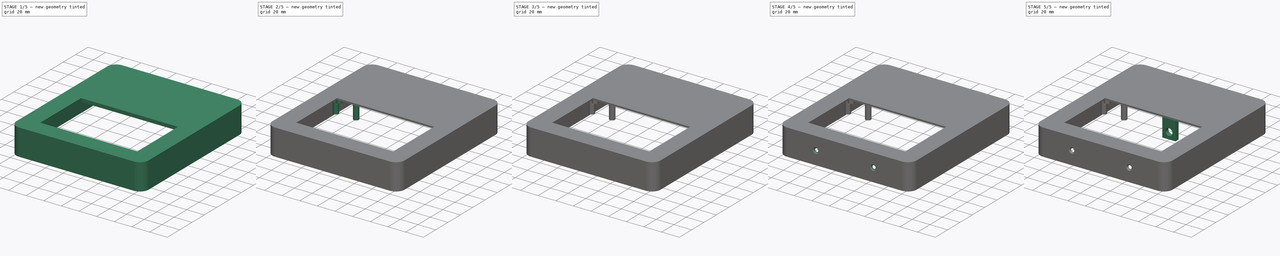
[diagram: build sequence overview — one tinted view per stage of 5, left to right]
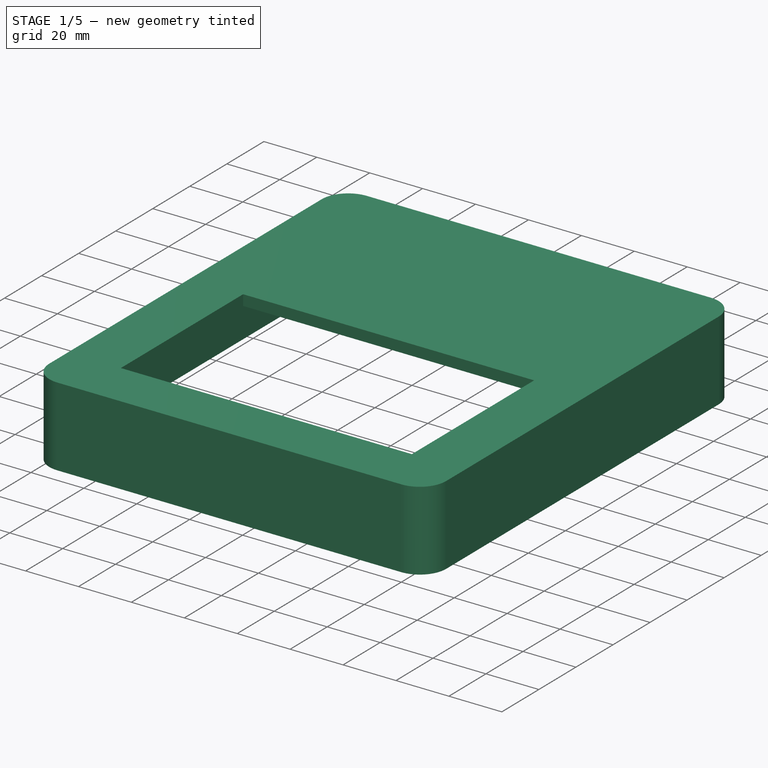
[diagram: stage 1 of 5 — iso view after this stage's code; geometry added in this stage tinted green]
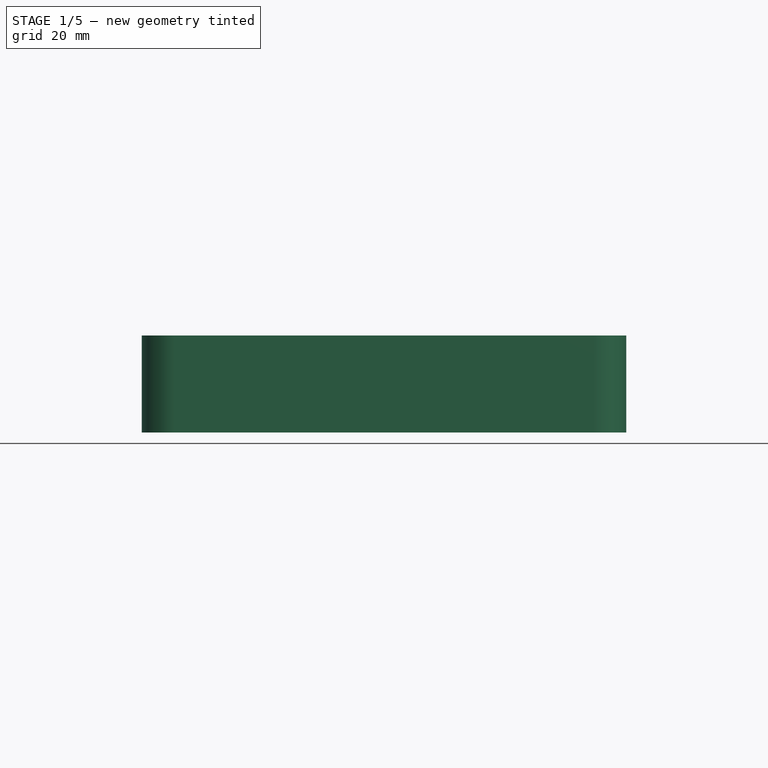
[diagram: stage 1 of 5 — front view after this stage's code; geometry added in this stage tinted green]
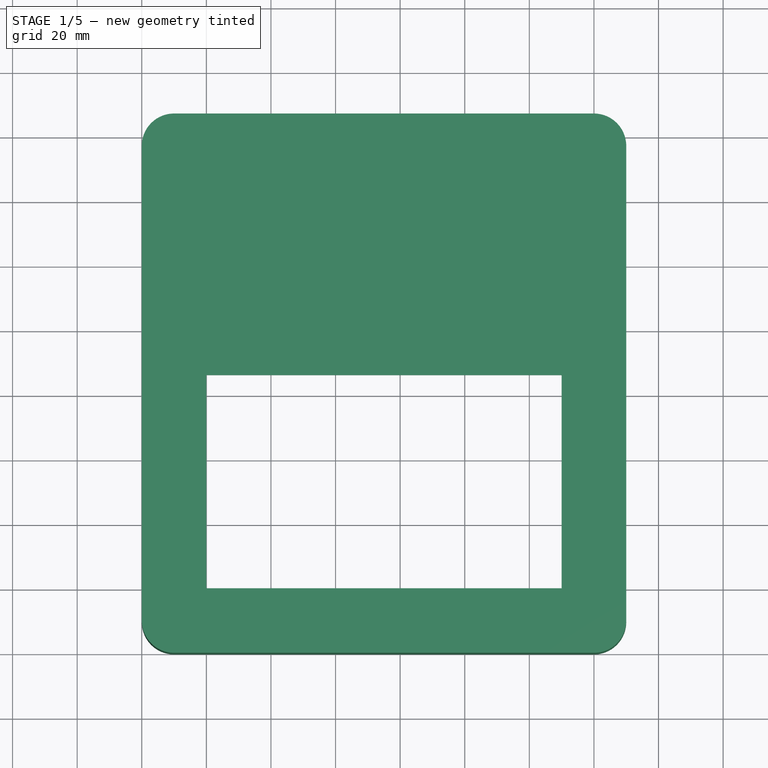
[diagram: stage 1 of 5 — top view after this stage's code; geometry added in this stage tinted green]
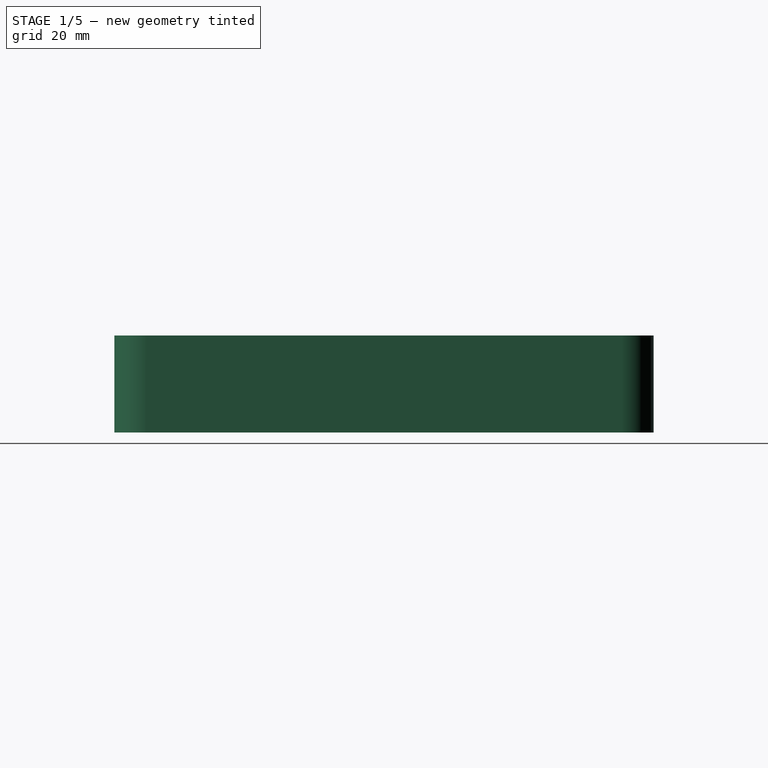
[diagram: stage 1 of 5 — right view after this stage's code; geometry added in this stage tinted green]
FCSTD DOCUMENT  (FreeCAD 0.18R)
Label: neu_top
License: All rights reserved
LicenseURL: http://en.wikipedia.org/wiki/All_rights_reserved
objects: Sketcher::SketchObject×17, PartDesign::Pocket×8, PartDesign::Pad×7, PartDesign::Hole×2, PartDesign::Body×1
note: 52 computed .brp shape members not serialized (recipe doc carries the construction recipe); baked Part::Feature solids carry a one-line shape summary decoded from their .brp

FEATURE [Sketcher::SketchObject] Sketch001
  MapMode = 5
  Support = -> [XY_Plane]
  sketch-geometry (8):
    g0: LineSegment StartX=10 StartY=167 StartZ=0 EndX=140 EndY=167 EndZ=0
    g1: LineSegment StartX=150 StartY=157 StartZ=0 EndX=150 EndY=10 EndZ=0
    g2: LineSegment StartX=140 StartY=0 StartZ=0 EndX=10 EndY=0 EndZ=0
    g3: LineSegment StartX=0 StartY=10 StartZ=0 EndX=0 EndY=157 EndZ=0
    g4: ArcOfCircle CenterX=10 CenterY=157 CenterZ=0 NormalX=0 NormalY=0 NormalZ=1 AngleXU=0 Radius=10 StartAngle=1.5708 EndAngle=3.14159
    g5: ArcOfCircle CenterX=140 CenterY=157 CenterZ=0 NormalX=0 NormalY=0 NormalZ=1 AngleXU=0 Radius=10 StartAngle=-9e-16 EndAngle=1.5708
    g6: ArcOfCircle CenterX=140 CenterY=10 CenterZ=0 NormalX=0 NormalY=0 NormalZ=1 AngleXU=0 Radius=10 StartAngle=4.71239 EndAngle=6.28319
    g7: ArcOfCircle CenterX=10 CenterY=10 CenterZ=0 NormalX=0 NormalY=0 NormalZ=1 AngleXU=0 Radius=10 StartAngle=3.14159 EndAngle=4.71239
  constraints (20):
    c: Horizontal(g0)
    c: Horizontal(g2)
    c: Vertical(g1)
    c: Vertical(g3)
    c: Tangent(g0,g4) = 1.5708
    c: Tangent(g3,g4) = 1.5708
    c: Tangent(g0,g5) = 1.5708
    c: Tangent(g1,g5) = 1.5708
    c: Tangent(g1,g6) = 1.5708
    c: Tangent(g2,g6) = 1.5708
    c: Tangent(g2,g7) = 1.5708
    c: Tangent(g3,g7) = 1.5708
    c: Radius(g6) = 10
    c: Radius(g7) = 10
    c: Radius(g4) = 10
    c: Radius(g5) = 10
    c: Distance(g3,g1) = 150
    c: Distance(g0,g2) = 167
    c: DistanceY(g-1,g2) = 0
    c: DistanceX(g-2,g3) = 0
FEATURE [PartDesign::Pad] Pad
  Length = 30
  Length2 = 100
  Profile = -> Sketch001
  Type = 0
FEATURE [Sketcher::SketchObject] Sketch
  ExternalGeometry = -> [Pad]
  MapMode = 5
  Placement = pos=(0,0,0) rot=(1,0,0;3.14159rad)
  Support = -> [Pad]
  sketch-geometry (8):
    g0: LineSegment StartX=9.99999 StartY=-2 StartZ=0 EndX=140 EndY=-2 EndZ=0
    g1: LineSegment StartX=148 StartY=-10 StartZ=0 EndX=148 EndY=-157 EndZ=0
    g2: LineSegment StartX=140 StartY=-165 StartZ=0 EndX=10 EndY=-165 EndZ=0
    g3: LineSegment StartX=2 StartY=-157 StartZ=0 EndX=2 EndY=-9.99999 EndZ=0
    g4: ArcOfCircle CenterX=10 CenterY=-157 CenterZ=0 NormalX=0 NormalY=0 NormalZ=1 AngleXU=0 Radius=8.00001 StartAngle=3.14159 EndAngle=4.71239
    g5: ArcOfCircle CenterX=140 CenterY=-157 CenterZ=0 NormalX=0 NormalY=0 NormalZ=1 AngleXU=0 Radius=7.99999 StartAngle=4.71239 EndAngle=6.28319
    g6: ArcOfCircle CenterX=140 CenterY=-10 CenterZ=0 NormalX=0 NormalY=0 NormalZ=1 AngleXU=0 Radius=8.00001 StartAngle=0 EndAngle=1.5708
    g7: ArcOfCircle CenterX=9.99999 CenterY=-9.99999 CenterZ=0 NormalX=0 NormalY=0 NormalZ=1 AngleXU=0 Radius=7.99999 StartAngle=1.5708 EndAngle=3.14159
  constraints (20):
    c: Horizontal(g0)
    c: Horizontal(g2)
    c: Vertical(g1)
    c: Vertical(g3)
    c: Tangent(g3,g4) = 1.5708
    c: Tangent(g2,g4) = 1.5708
    c: Tangent(g1,g5) = 1.5708
    c: Tangent(g2,g5) = 1.5708
    c: Tangent(g0,g6) = 1.5708
    c: Tangent(g1,g6) = 1.5708
    c: Tangent(g0,g7) = 1.5708
    c: Tangent(g3,g7) = 1.5708
    c: Distance(g0,g-8) = 2
    c: Distance(g3,g-8) = 2
    c: Distance(g0,g-4) = 2
    c: Distance(g1,g-4) = 2
    c: Distance(g1,g-5) = 2
    c: Distance(g2,g-6) = 2
    c: Distance(g-7,g2) = 2
    c: Distance(g3,g-2) = 2
FEATURE [PartDesign::Pocket] Pocket
  BaseFeature = -> Pad
  Length = 26
  Length2 = 100
  Profile = -> Sketch
  Type = 0
FEATURE [Sketcher::SketchObject] Sketch002
  MapMode = 5
  Placement = pos=(0,0,26) rot=(1,0,0;3.14159rad)
  Support = -> [Pocket]
  sketch-geometry (4):
    g0: LineSegment StartX=20 StartY=-20 StartZ=0 EndX=130 EndY=-20 EndZ=0
    g1: LineSegment StartX=130 StartY=-20 StartZ=0 EndX=130 EndY=-86 EndZ=0
    g2: LineSegment StartX=130 StartY=-86 StartZ=0 EndX=20 EndY=-86 EndZ=0
    g3: LineSegment StartX=20 StartY=-86 StartZ=0 EndX=20 EndY=-20 EndZ=0
  constraints (12):
    c: Coincident(g0,g1)
    c: Coincident(g1,g2)
    c: Coincident(g2,g3)
    c: Coincident(g3,g0)
    c: Horizontal(g0)
    c: Horizontal(g2)
    c: Vertical(g1)
    c: Vertical(g3)
    c: Distance(g0) = 110
    c: Distance(g1) = 66
    c: Distance(g2,g-2) = 20
    c: Distance(g0,g-1) = 20
FEATURE [PartDesign::Pocket] Pocket001
  BaseFeature = -> Pocket
  Length = 5
  Length2 = 100
  Profile = -> Sketch002
  Type = 0
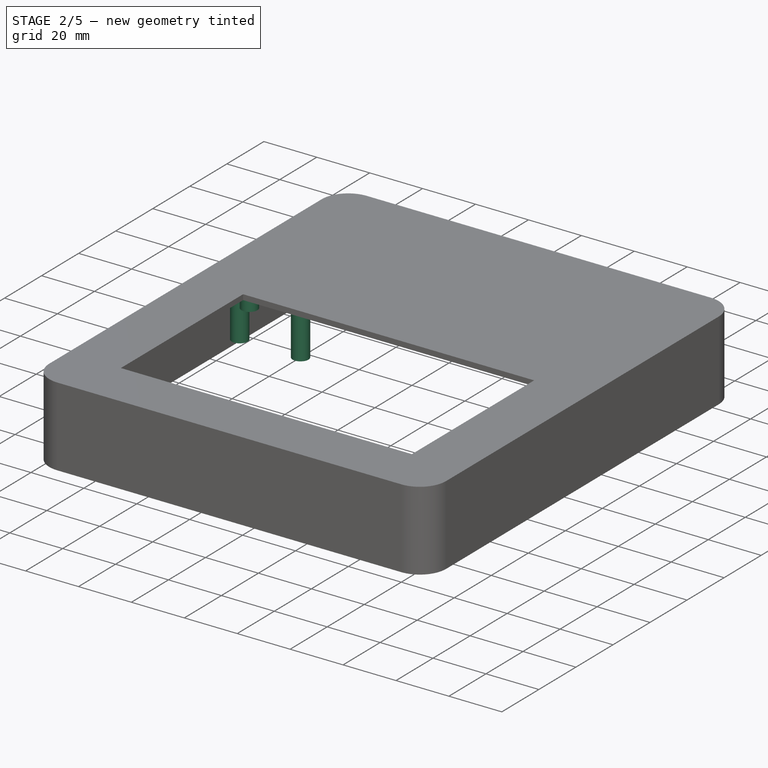
[diagram: stage 2 of 5 — iso view after this stage's code; geometry added in this stage tinted green]
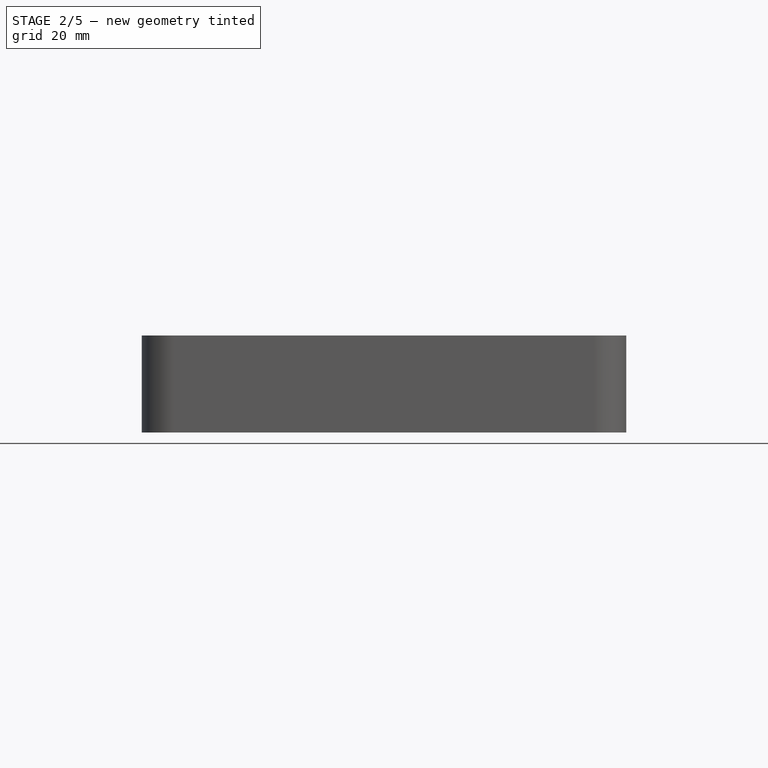
[diagram: stage 2 of 5 — front view after this stage's code; geometry added in this stage tinted green]
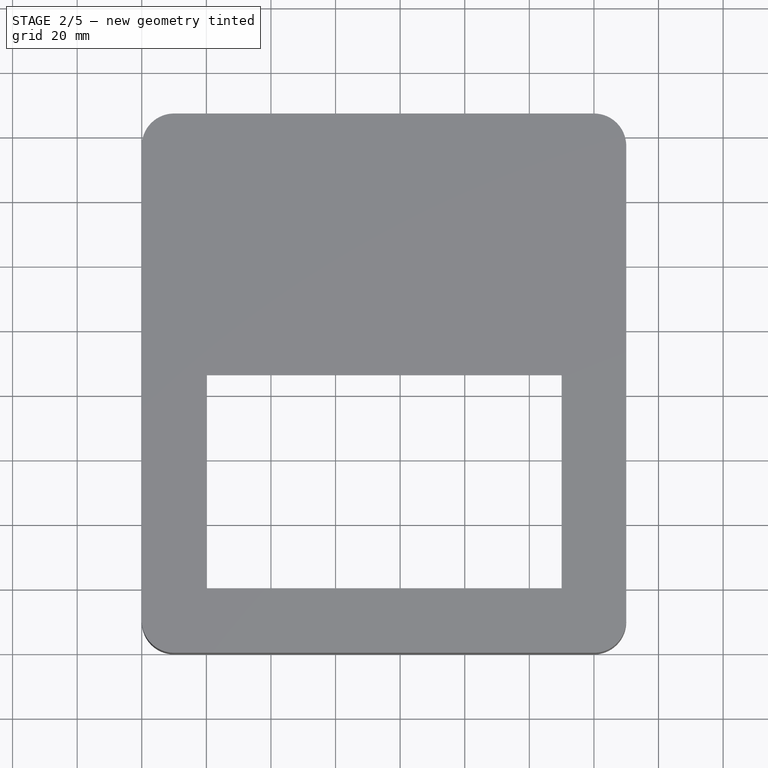
[diagram: stage 2 of 5 — top view after this stage's code; geometry added in this stage tinted green]
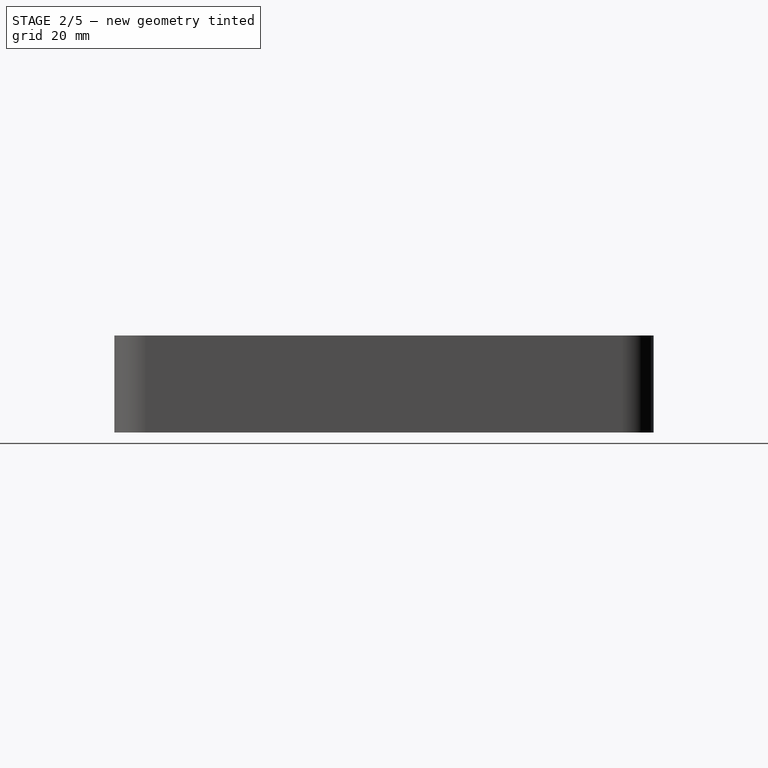
[diagram: stage 2 of 5 — right view after this stage's code; geometry added in this stage tinted green]
FEATURE [Sketcher::SketchObject] Sketch003
  ExternalGeometry = -> [Pocket001]
  MapMode = 5
  Placement = pos=(0,0,26) rot=(1,0,0;3.14159rad)
  Support = -> [Pocket001]
  sketch-geometry (4):
    g0: LineSegment StartX=14.5 StartY=-12 StartZ=0 EndX=135.5 EndY=-12 EndZ=0
    g1: LineSegment StartX=135.5 StartY=-12 StartZ=0 EndX=135.5 EndY=-90 EndZ=0
    g2: LineSegment StartX=135.5 StartY=-90 StartZ=0 EndX=14.5 EndY=-90 EndZ=0
    g3: LineSegment StartX=14.5 StartY=-90 StartZ=0 EndX=14.5 EndY=-12 EndZ=0
  constraints (12):
    c: Coincident(g0,g1)
    c: Coincident(g1,g2)
    c: Coincident(g2,g3)
    c: Coincident(g3,g0)
    c: Horizontal(g0)
    c: Horizontal(g2)
    c: Vertical(g1)
    c: Vertical(g3)
    c: Distance(g0) = 121
    c: Distance(g3) = 78
    c: Distance(g0,g-4) = 5.5
    c: Distance(g1,g-3) = 4
FEATURE [PartDesign::Pocket] Pocket002
  BaseFeature = -> Pocket001
  Length = 2
  Length2 = 100
  Profile = -> Sketch003
  Type = 0
FEATURE [Sketcher::SketchObject] Sketch004
  ExternalGeometry = -> [Pocket002]
  MapMode = 5
  Placement = pos=(0,0,26) rot=(1,0,0;3.14159rad)
  Support = -> [Pocket002]
  sketch-geometry (4):
    g0: Circle CenterX=17.5 CenterY=-9 CenterZ=0 NormalX=0 NormalY=0 NormalZ=1 AngleXU=0 Radius=3
    g1: Circle CenterX=132.5 CenterY=-9 CenterZ=0 NormalX=0 NormalY=0 NormalZ=1 AngleXU=0 Radius=3
    g2: Circle CenterX=132.5 CenterY=-93 CenterZ=0 NormalX=0 NormalY=0 NormalZ=1 AngleXU=0 Radius=3
    g3: Circle CenterX=17.5 CenterY=-93 CenterZ=0 NormalX=0 NormalY=0 NormalZ=1 AngleXU=0 Radius=3
  constraints (12):
    c: Radius(g0) = 3
    c: Radius(g1) = 3
    c: Radius(g2) = 3
    c: Radius(g3) = 3
    c: Distance(g0,g-3) = 3
    c: Distance(g0,g-5) = 3
    c: Distance(g1,g-3) = 3
    c: Distance(g1,g-6) = 3
    c: Distance(g2,g-4) = 3
    c: Distance(g2,g-6) = 3
    c: Distance(g3,g-4) = 3
    c: Distance(g3,g-5) = 3
FEATURE [PartDesign::Pad] Pad001
  BaseFeature = -> Pocket002
  Length = 4
  Length2 = 100
  Profile = -> Sketch004
  Type = 0
FEATURE [Sketcher::SketchObject] Sketch005
  ExternalGeometry = -> [Pad001]
  MapMode = 5
  Placement = pos=(0,0,22) rot=(1,0,0;3.14159rad)
  Support = -> [Pad001]
  sketch-geometry (4):
    g0: Circle CenterX=17.5 CenterY=-9 CenterZ=0 NormalX=0 NormalY=0 NormalZ=1 AngleXU=0 Radius=1.6
    g1: Circle CenterX=132.5 CenterY=-9 CenterZ=0 NormalX=0 NormalY=0 NormalZ=1 AngleXU=0 Radius=1.6
    g2: Circle CenterX=17.5 CenterY=-93 CenterZ=0 NormalX=0 NormalY=0 NormalZ=1 AngleXU=0 Radius=1.6
    g3: Circle CenterX=132.5 CenterY=-93 CenterZ=0 NormalX=0 NormalY=0 NormalZ=1 AngleXU=0 Radius=1.6
  constraints (8):
    c: Coincident(g0,g-3)
    c: Coincident(g1,g-4)
    c: Coincident(g3,g-5)
    c: Coincident(g2,g-6)
    c: Radius(g0) = 1.6
    c: Radius(g1) = 1.6
    c: Radius(g3) = 1.6
    c: Radius(g2) = 1.6
FEATURE [PartDesign::Pocket] Pocket003
  BaseFeature = -> Pad001
  Length = 6
  Length2 = 100
  Profile = -> Sketch005
  Type = 0
FEATURE [Sketcher::SketchObject] Sketch006
  ExternalGeometry = -> [Pocket003]
  MapMode = 5
  Placement = pos=(0,0,26) rot=(1,0,0;3.14159rad)
  Support = -> [Pocket003]
  sketch-geometry (6):
    g0: Circle CenterX=11 CenterY=-97 CenterZ=0 NormalX=0 NormalY=0 NormalZ=1 AngleXU=0 Radius=3
    g1: Circle CenterX=34 CenterY=-97 CenterZ=0 NormalX=0 NormalY=0 NormalZ=1 AngleXU=0 Radius=3
    g2: Circle CenterX=11 CenterY=-155 CenterZ=0 NormalX=0 NormalY=0 NormalZ=1 AngleXU=0 Radius=3
    g3: Circle CenterX=34 CenterY=-155 CenterZ=0 NormalX=0 NormalY=0 NormalZ=1 AngleXU=0 Radius=3
    g4: Circle CenterX=125 CenterY=-114 CenterZ=0 NormalX=0 NormalY=0 NormalZ=1 AngleXU=0 Radius=3
    g5: Circle CenterX=141 CenterY=-144.566 CenterZ=0 NormalX=0 NormalY=0 NormalZ=1 AngleXU=0 Radius=3
  constraints (18):
    c: Radius(g0) = 3
    c: Radius(g1) = 3
    c: Radius(g3) = 3
    c: Radius(g2) = 3
    c: Distance(g0,g-2) = 11
    c: Distance(g2,g-2) = 11
    c: Distance(g0,g2) = 58
    c: Distance(g1,g3) = 58
    c: Distance(g1,g0) = 23
    c: Distance(g3,g2) = 23
    c: Distance(g3,g-3) = 12
    c: Distance(g2,g-3) = 12
    c: Radius(g4) = 3
    c: Radius(g5) = 3
    c: Distance(g4,g5) = 34.5
    c: Distance(g4,g-4) = 25
    c: Distance(g5,g-4) = 9
    c: Distance(g4,g-5) = 24
FEATURE [PartDesign::Pad] Pad002
  BaseFeature = -> Pocket003
  Length = 18
  Length2 = 100
  Profile = -> Sketch006
  Type = 0
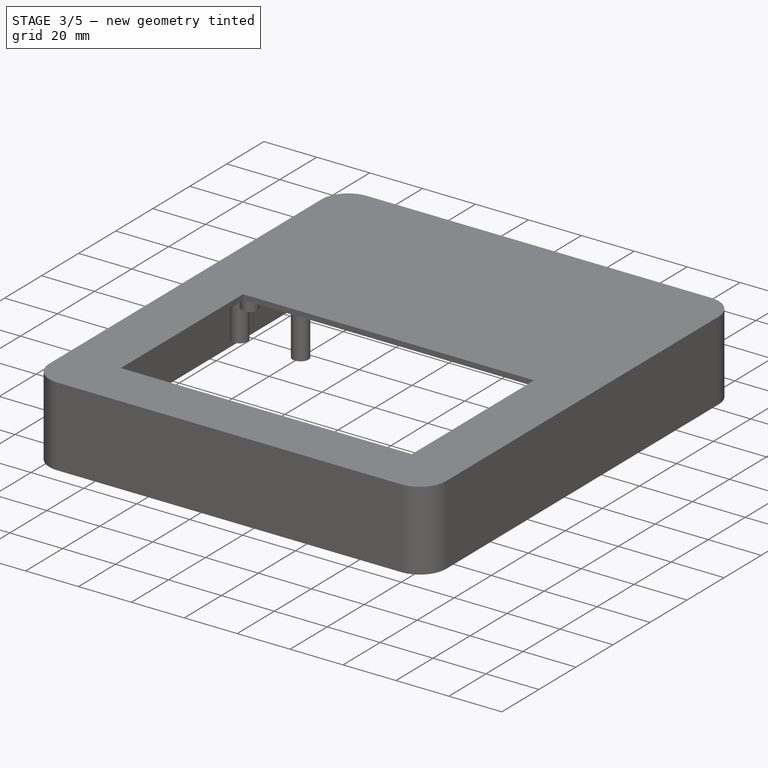
[diagram: stage 3 of 5 — iso view after this stage's code; geometry added in this stage tinted green]
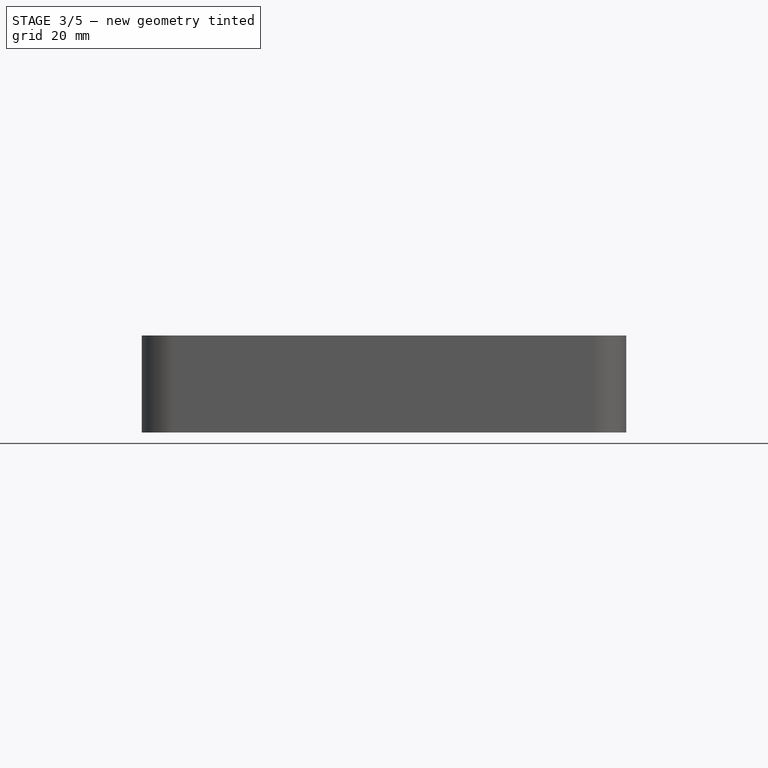
[diagram: stage 3 of 5 — front view after this stage's code; geometry added in this stage tinted green]
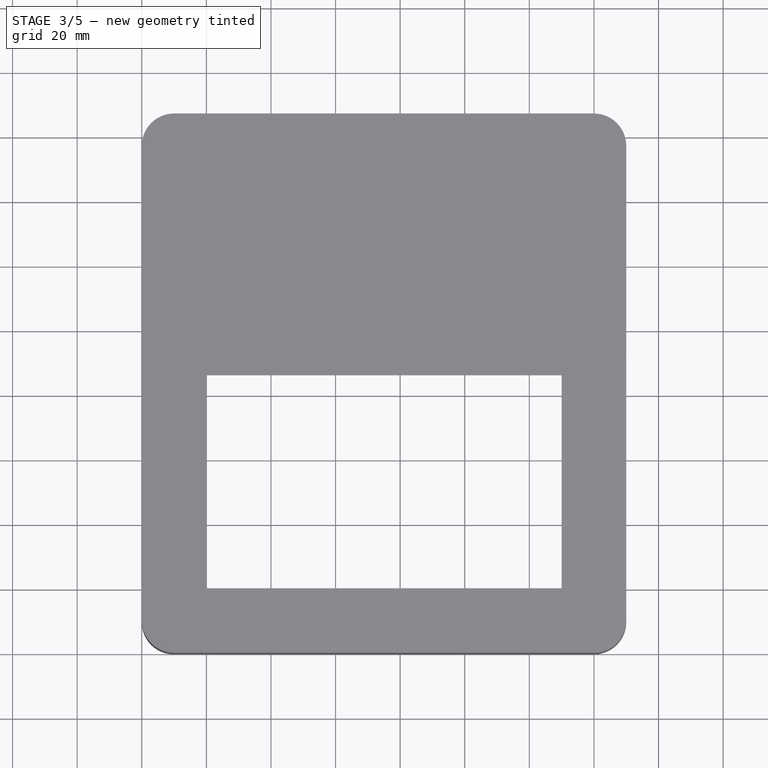
[diagram: stage 3 of 5 — top view after this stage's code; geometry added in this stage tinted green]
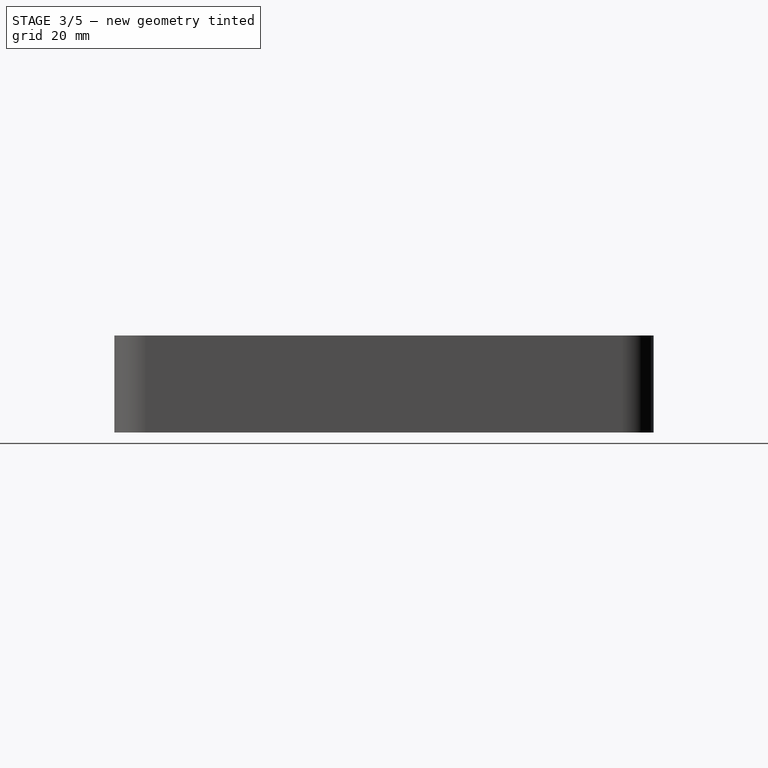
[diagram: stage 3 of 5 — right view after this stage's code; geometry added in this stage tinted green]
FEATURE [Sketcher::SketchObject] Sketch007
  ExternalGeometry = -> [Pad002]
  MapMode = 5
  Placement = pos=(0,0,8) rot=(1,0,0;3.14159rad)
  Support = -> [Pad002]
  sketch-geometry (6):
    g0: Circle CenterX=11 CenterY=-97 CenterZ=0 NormalX=0 NormalY=0 NormalZ=1 AngleXU=0 Radius=1.3
    g1: Circle CenterX=34 CenterY=-97 CenterZ=0 NormalX=0 NormalY=0 NormalZ=1 AngleXU=0 Radius=1.3
    g2: Circle CenterX=11 CenterY=-155 CenterZ=0 NormalX=0 NormalY=0 NormalZ=1 AngleXU=0 Radius=1.3
    g3: Circle CenterX=34 CenterY=-155 CenterZ=0 NormalX=0 NormalY=0 NormalZ=1 AngleXU=0 Radius=1.3
    g4: Circle CenterX=125 CenterY=-114 CenterZ=0 NormalX=0 NormalY=0 NormalZ=1 AngleXU=0 Radius=1.3
    g5: Circle CenterX=141 CenterY=-144.566 CenterZ=0 NormalX=0 NormalY=0 NormalZ=1 AngleXU=0 Radius=1.3
  constraints (12):
    c: Coincident(g0,g-3)
    c: Coincident(g1,g-4)
    c: Coincident(g2,g-8)
    c: Coincident(g3,g-7)
    c: Coincident(g4,g-5)
    c: Coincident(g5,g-6)
    c: Radius(g0) = 1.3
    c: Radius(g1) = 1.3
    c: Radius(g2) = 1.3
    c: Radius(g3) = 1.3
    c: Radius(g5) = 1.3
    c: Radius(g4) = 1.3
FEATURE [PartDesign::Pocket] Pocket004
  BaseFeature = -> Pad002
  Length = 8
  Length2 = 100
  Profile = -> Sketch007
  Type = 0
FEATURE [Sketcher::SketchObject] Sketch008
  MapMode = 5
  Placement = pos=(0,0,26) rot=(1,0,0;3.14159rad)
  Support = -> [Pocket004]
  sketch-geometry (4):
    g0: Circle CenterX=62.5 CenterY=-109 CenterZ=0 NormalX=0 NormalY=0 NormalZ=1 AngleXU=0 Radius=3
    g1: Circle CenterX=87.5 CenterY=-109 CenterZ=0 NormalX=0 NormalY=0 NormalZ=1 AngleXU=0 Radius=3
    g2: Circle CenterX=57.5 CenterY=-146 CenterZ=0 NormalX=0 NormalY=0 NormalZ=1 AngleXU=0 Radius=3
    g3: Circle CenterX=92.5 CenterY=-146 CenterZ=0 NormalX=0 NormalY=0 NormalZ=1 AngleXU=0 Radius=3
  constraints (12):
    c: Distance(g0,g-1) = 109
    c: Distance(g1,g-1) = 109
    c: Distance(g2,g-1) = 146
    c: Distance(g3,g-1) = 146
    c: Distance(g0,g-2) = 62.5
    c: Distance(g1,g-2) = 87.5
    c: Distance(g2,g-2) = 57.5
    c: Distance(g3,g-2) = 92.5
    c: Radius(g1) = 3
    c: Radius(g0) = 3
    c: Radius(g3) = 3
    c: Radius(g2) = 3
FEATURE [PartDesign::Pad] Pad003
  BaseFeature = -> Pocket004
  Length = 1
  Length2 = 100
  Profile = -> Sketch008
  Type = 0
FEATURE [Sketcher::SketchObject] Sketch009
  ExternalGeometry = -> [Pad003]
  MapMode = 5
  Placement = pos=(0,0,25) rot=(1,0,0;3.14159rad)
  Support = -> [Pad003]
  sketch-geometry (4):
    g0: Circle CenterX=62.5 CenterY=-109 CenterZ=0 NormalX=0 NormalY=0 NormalZ=1 AngleXU=0 Radius=1
    g1: Circle CenterX=92.5 CenterY=-146 CenterZ=0 NormalX=0 NormalY=0 NormalZ=1 AngleXU=0 Radius=1
    g2: Circle CenterX=87.5 CenterY=-109 CenterZ=0 NormalX=0 NormalY=0 NormalZ=1 AngleXU=0 Radius=1
    g3: Circle CenterX=57.5 CenterY=-146 CenterZ=0 NormalX=0 NormalY=0 NormalZ=1 AngleXU=0 Radius=1
  constraints (8):
    c: Coincident(g0,g-3)
    c: Coincident(g1,g-4)
    c: Coincident(g-5,g2)
    c: Coincident(g-6,g3)
    c: Radius(g0) = 1
    c: Radius(g1) = 1
    c: Radius(g2) = 1
    c: Radius(g3) = 1
FEATURE [PartDesign::Pad] Pad004
  BaseFeature = -> Pad003
  Length = 2
  Length2 = 100
  Profile = -> Sketch009
  Type = 0
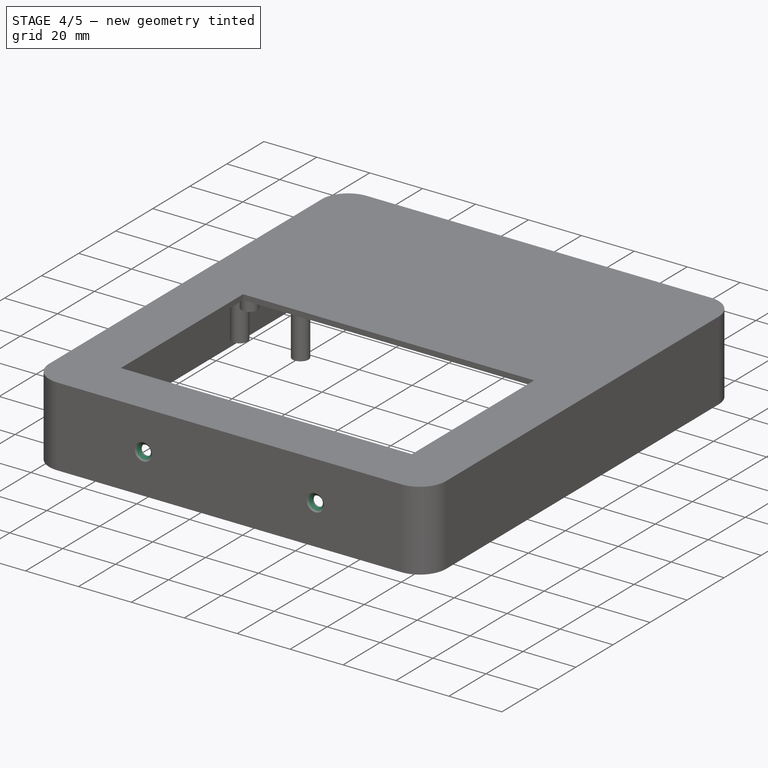
[diagram: stage 4 of 5 — iso view after this stage's code; geometry added in this stage tinted green]
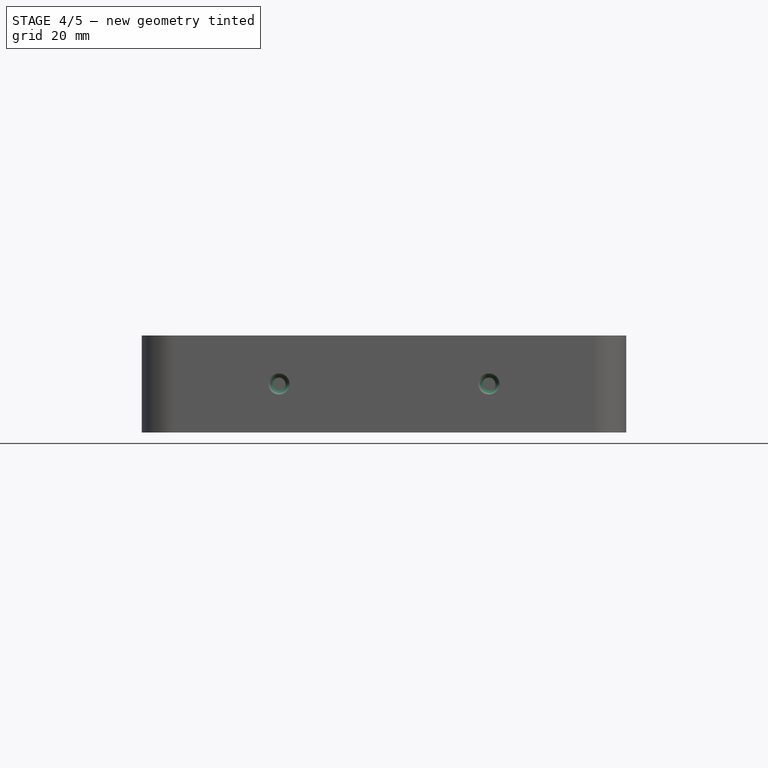
[diagram: stage 4 of 5 — front view after this stage's code; geometry added in this stage tinted green]
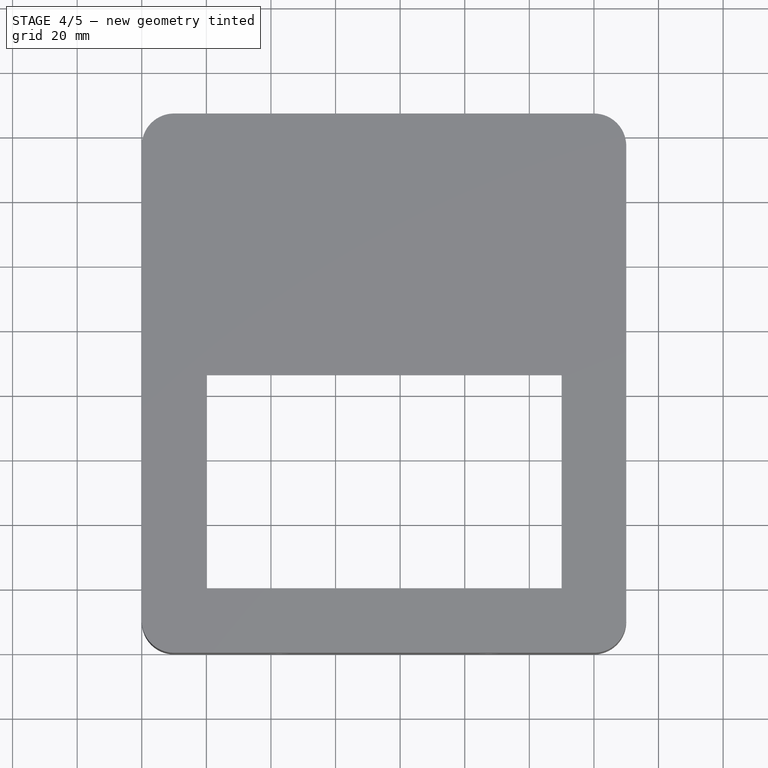
[diagram: stage 4 of 5 — top view after this stage's code; geometry added in this stage tinted green]
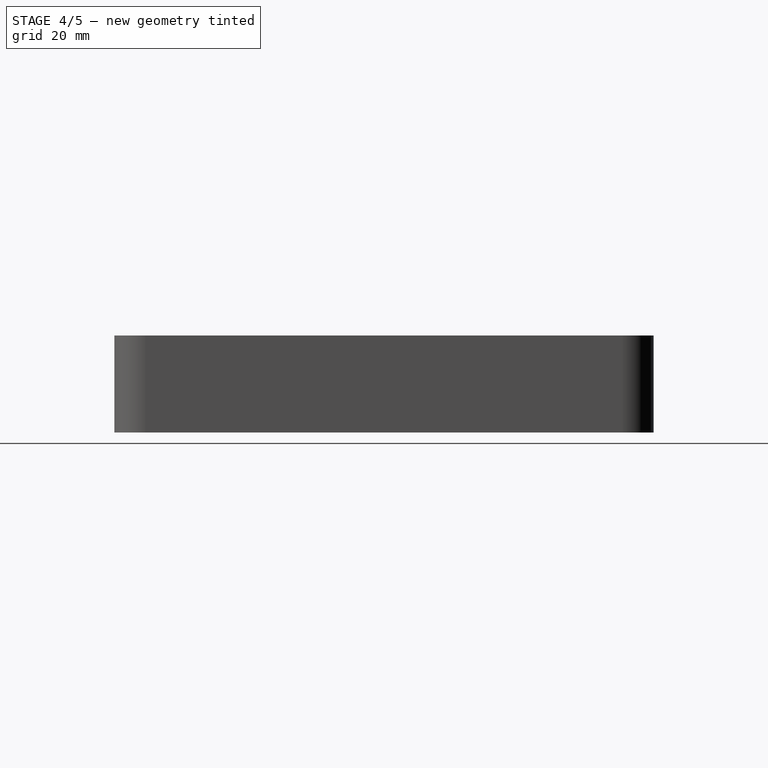
[diagram: stage 4 of 5 — right view after this stage's code; geometry added in this stage tinted green]
FEATURE [Sketcher::SketchObject] Sketch010
  ExternalGeometry = -> [Pad004]
  MapMode = 5
  Placement = pos=(0,0,26) rot=(1,0,0;3.14159rad)
  Support = -> [Pad004]
  sketch-geometry (2):
    g0: Circle CenterX=50 CenterY=-125 CenterZ=0 NormalX=0 NormalY=0 NormalZ=1 AngleXU=0 Radius=3
    g1: Circle CenterX=100 CenterY=-125 CenterZ=0 NormalX=0 NormalY=0 NormalZ=1 AngleXU=0 Radius=3
  constraints (6):
    c: Distance(g1,g-4) = 50
    c: Distance(g0,g-2) = 50
    c: Distance(g0,g-3) = 35
    c: Distance(g1,g-3) = 35
    c: Radius(g1) = 3
    c: Radius(g0) = 3
FEATURE [PartDesign::Pad] Pad005
  BaseFeature = -> Pad004
  Length = 9
  Length2 = 100
  Profile = -> Sketch010
  Type = 0
FEATURE [Sketcher::SketchObject] Sketch011
  ExternalGeometry = -> [Pad005]
  MapMode = 5
  Placement = pos=(0,0,17) rot=(1,0,0;3.14159rad)
  Support = -> [Pad005]
  sketch-geometry (2):
    g0: Circle CenterX=100 CenterY=-125 CenterZ=0 NormalX=0 NormalY=0 NormalZ=1 AngleXU=0 Radius=1.3
    g1: Circle CenterX=50 CenterY=-125 CenterZ=0 NormalX=0 NormalY=0 NormalZ=1 AngleXU=0 Radius=1.3
  constraints (4):
    c: Radius(g1) = 1.3
    c: Radius(g0) = 1.3
    c: Coincident(g-3,g1)
    c: Coincident(g-4,g0)
FEATURE [PartDesign::Pocket] Pocket005
  BaseFeature = -> Pad005
  Length = 8
  Length2 = 100
  Profile = -> Sketch011
  Type = 0
FEATURE [Sketcher::SketchObject] Sketch012
  MapMode = 5
  Placement = pos=(0,167,0) rot=(0,0.707107,0.707107;3.14159rad)
  Support = -> [Pocket005]
  sketch-geometry (2):
    g0: Circle CenterX=-47.5 CenterY=15 CenterZ=0 NormalX=0 NormalY=0 NormalZ=1 AngleXU=0 Radius=3
    g1: Circle CenterX=-102.5 CenterY=15 CenterZ=0 NormalX=0 NormalY=0 NormalZ=1 AngleXU=0 Radius=3
  constraints (6):
    c: Distance(g0,g-2) = 47.5
    c: Distance(g1,g0) = 55
    c: Distance(g0,g-1) = 15
    c: Distance(g1,g-1) = 15
    c: Radius(g1) = 3
    c: Radius(g0) = 3
FEATURE [PartDesign::Hole] Hole
  BaseFeature = -> Pocket005
  Depth = 25
  DepthType = 0
  Diameter = 4
  DrillPoint = 1
  DrillPointAngle = 118
  HoleCutCountersinkAngle = 90
  HoleCutDepth = 0
  HoleCutDiameter = 6.5
  HoleCutType = 2
  ModelActualThread = false
  Profile = -> Sketch012
  Tapered = false
  TaperedAngle = 90
  ThreadAngle = 0
  ThreadClass = 0
  ThreadCutOffInner = 0
  ThreadCutOffOuter = 0
  ThreadDirection = 0
  ThreadFit = 0
  ThreadPitch = 0
  ThreadSize = 0
  ThreadType = 0
  Threaded = false
FEATURE [Sketcher::SketchObject] Sketch013
  MapMode = 5
  Placement = pos=(0,0,0) rot=(1,0,0;1.5708rad)
  Support = -> [Hole]
  sketch-geometry (2):
    g0: Circle CenterX=42.5 CenterY=15 CenterZ=0 NormalX=0 NormalY=0 NormalZ=1 AngleXU=0 Radius=3
    g1: Circle CenterX=107.5 CenterY=15 CenterZ=0 NormalX=0 NormalY=0 NormalZ=1 AngleXU=0 Radius=3
  constraints (6):
    c: Distance(g0,g1) = 65
    c: Distance(g0,g-2) = 42.5
    c: Distance(g0,g-1) = 15
    c: Distance(g1,g-1) = 15
    c: Radius(g1) = 3
    c: Radius(g0) = 3
FEATURE [PartDesign::Hole] Hole001
  BaseFeature = -> Hole
  Depth = 25
  DepthType = 0
  Diameter = 4
  DrillPoint = 1
  DrillPointAngle = 118
  HoleCutCountersinkAngle = 90
  HoleCutDepth = 0
  HoleCutDiameter = 6.5
  HoleCutType = 2
  ModelActualThread = false
  Profile = -> Sketch013
  Tapered = false
  TaperedAngle = 90
  ThreadAngle = 0
  ThreadClass = 0
  ThreadCutOffInner = 0
  ThreadCutOffOuter = 0
  ThreadDirection = 0
  ThreadFit = 0
  ThreadPitch = 0
  ThreadSize = 0
  ThreadType = 0
  Threaded = false
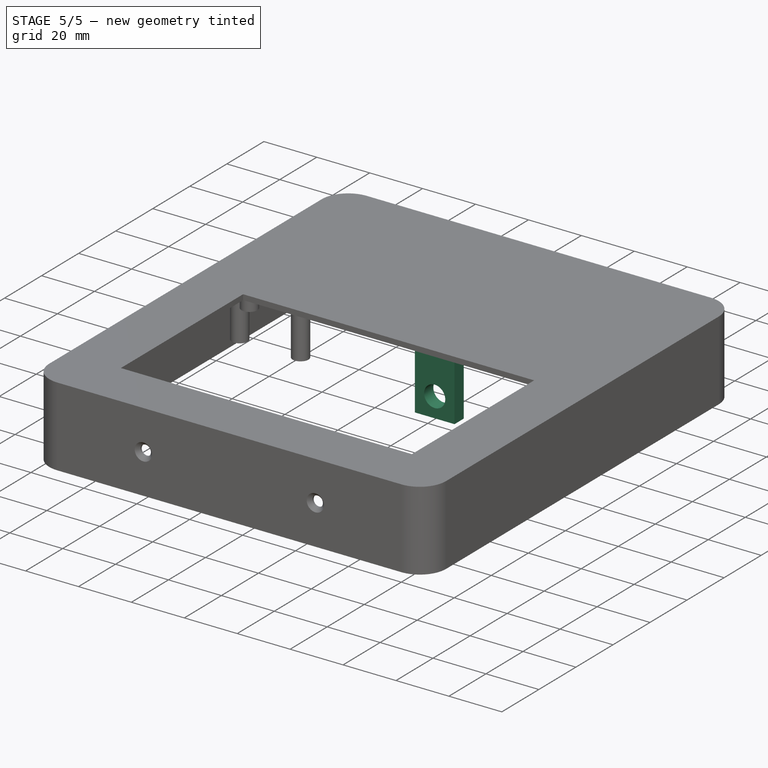
[diagram: stage 5 of 5 — iso view after this stage's code; geometry added in this stage tinted green]
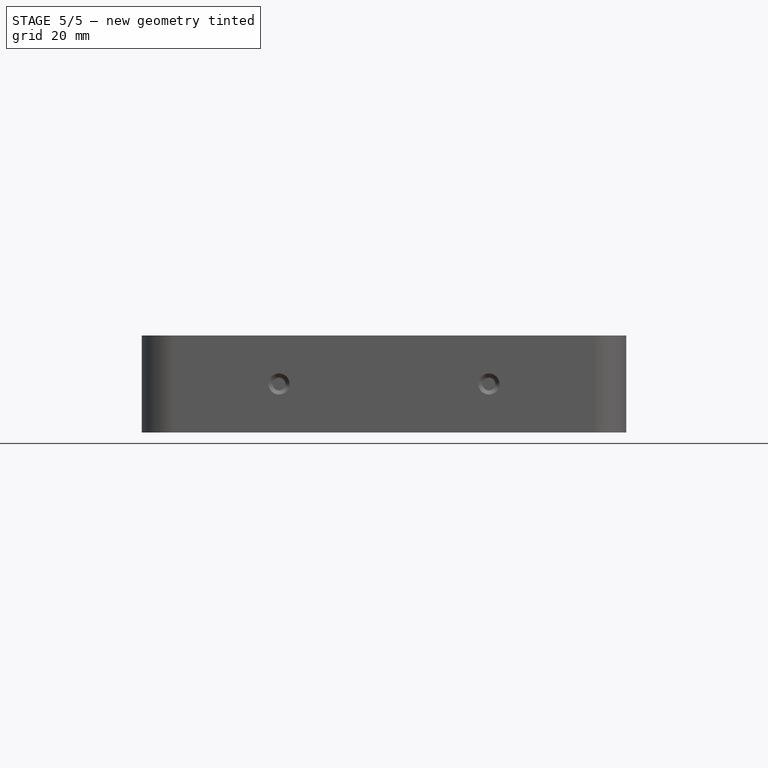
[diagram: stage 5 of 5 — front view after this stage's code; geometry added in this stage tinted green]
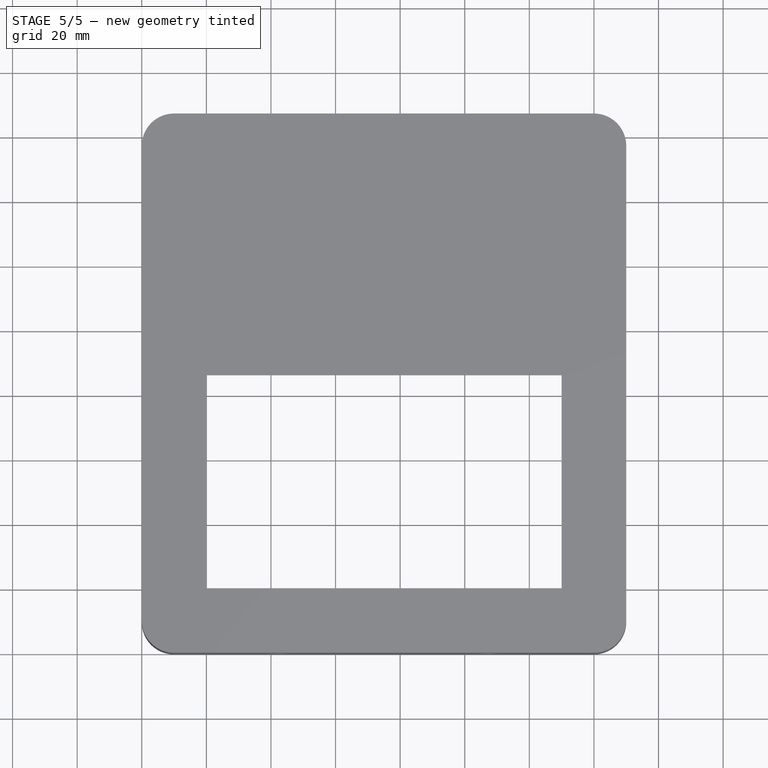
[diagram: stage 5 of 5 — top view after this stage's code; geometry added in this stage tinted green]
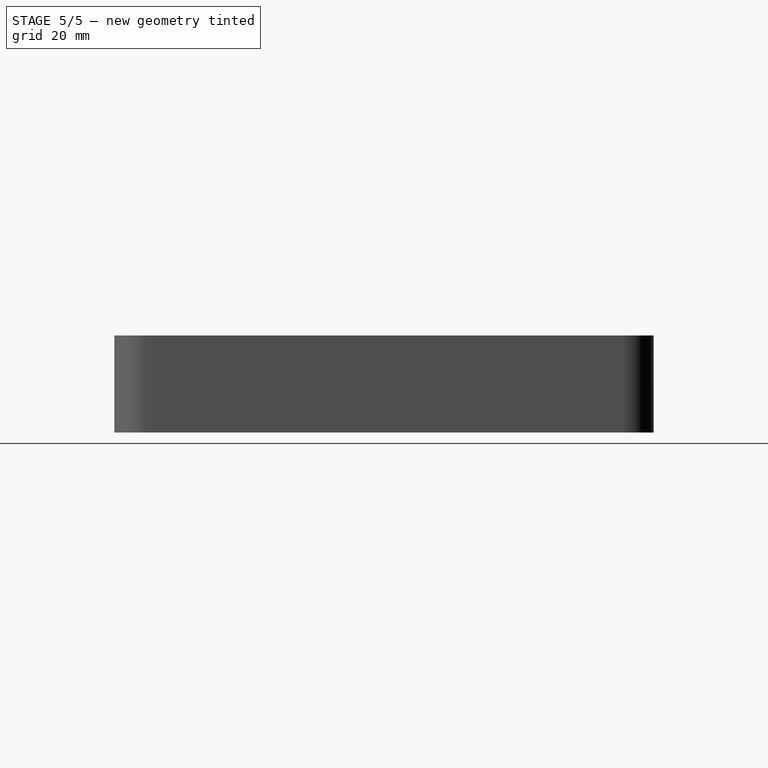
[diagram: stage 5 of 5 — right view after this stage's code; geometry added in this stage tinted green]
FEATURE [Sketcher::SketchObject] Sketch014
  MapMode = 5
  Placement = pos=(0,167,0) rot=(0,0.707107,0.707107;3.14159rad)
  Support = -> [Hole001]
  sketch-geometry (1):
    g0: Circle CenterX=-75 CenterY=7 CenterZ=0 NormalX=0 NormalY=0 NormalZ=1 AngleXU=0 Radius=4
  constraints (3):
    c: Radius(g0) = 4
    c: Distance(g0,g-1) = 7
    c: Distance(g0,g-2) = 75
FEATURE [PartDesign::Pocket] Pocket006
  BaseFeature = -> Hole001
  Length = 5
  Length2 = 100
  Profile = -> Sketch014
  Type = 0
FEATURE [Sketcher::SketchObject] Sketch015
  ExternalGeometry = -> [Pocket006]
  MapMode = 5
  Placement = pos=(0,0,26) rot=(1,0,0;3.14159rad)
  Support = -> [Pocket006]
  sketch-geometry (4):
    g0: LineSegment StartX=80 StartY=-93 StartZ=0 EndX=95 EndY=-93 EndZ=0
    g1: LineSegment StartX=95 StartY=-93 StartZ=0 EndX=95 EndY=-98 EndZ=0
    g2: LineSegment StartX=95 StartY=-98 StartZ=0 EndX=80 EndY=-98 EndZ=0
    g3: LineSegment StartX=80 StartY=-98 StartZ=0 EndX=80 EndY=-93 EndZ=0
  constraints (12):
    c: Coincident(g0,g1)
    c: Coincident(g1,g2)
    c: Coincident(g2,g3)
    c: Coincident(g3,g0)
    c: Horizontal(g0)
    c: Horizontal(g2)
    c: Vertical(g1)
    c: Vertical(g3)
    c: Distance(g1) = 5
    c: Distance(g0) = 15
    c: Distance(g2,g-2) = 80
    c: Distance(g0,g-3) = 3
FEATURE [PartDesign::Pad] Pad006
  BaseFeature = -> Pocket006
  Length = 23
  Length2 = 100
  Profile = -> Sketch015
  Type = 0
FEATURE [Sketcher::SketchObject] Sketch016
  ExternalGeometry = -> [Pad006]
  MapMode = 5
  Placement = pos=(0,98,0) rot=(0,0.707107,0.707107;3.14159rad)
  Support = -> [Pad006]
  sketch-geometry (1):
    g0: Circle CenterX=-87.5 CenterY=10.5 CenterZ=0 NormalX=0 NormalY=0 NormalZ=1 AngleXU=0 Radius=4
  constraints (3):
    c: Radius(g0) = 4
    c: Distance(g0,g-4) = 7.5
    c: Distance(g0,g-3) = 7.5
FEATURE [PartDesign::Pocket] Pocket007
  BaseFeature = -> Pad006
  Length = 5
  Length2 = 100
  Profile = -> Sketch016
  Type = 0
FEATURE [PartDesign::Body] Body
  Group = -> [Sketch001,Pad,Sketch,Pocket,Sketch002,Pocket001,Sketch003,Pocket002,Sketch004,Pad001,Sketch005,Pocket003,Sketch006,Pad002,Sketch007,Pocket004,Sketch008,Pad003,Sketch009,Pad004,Sketch010,Pad005,Sketch011,Pocket005,Sketch012,Hole,Sketch013,Hole001,Sketch014,Pocket006,Sketch015,Pad006,Sketch016,Pocket007]
  Origin = -> Origin
  Tip = -> Pocket007
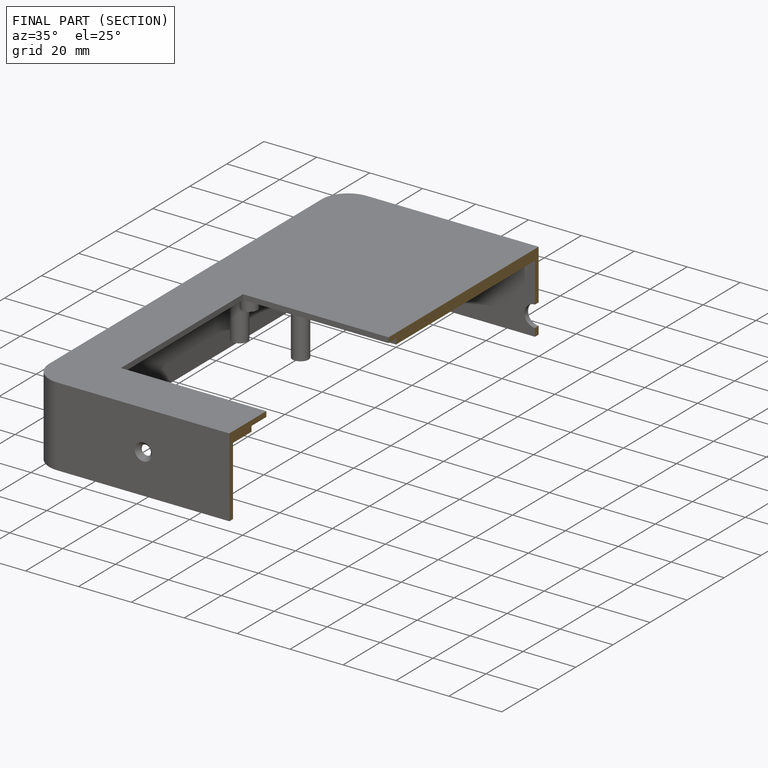
[diagram: finished part — half-section view (interior)]
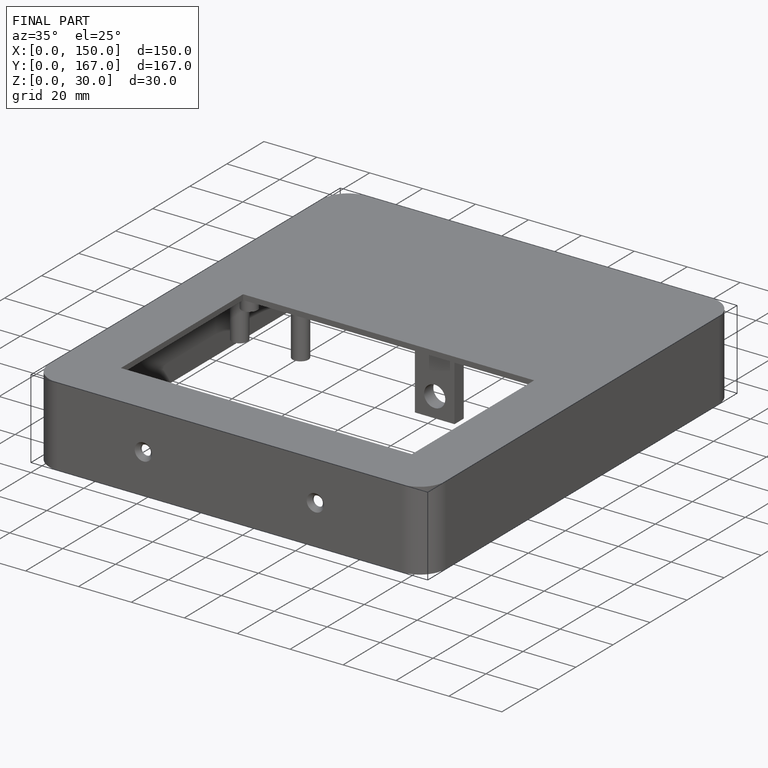
[diagram: finished part — iso view with bounding-box wireframe]
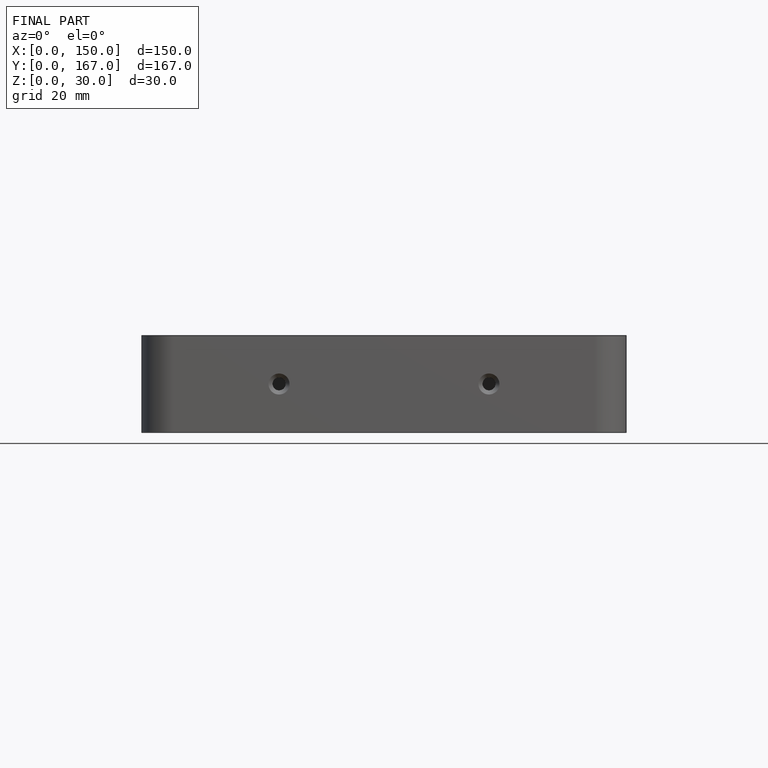
[diagram: finished part — front view with bounding-box wireframe]
